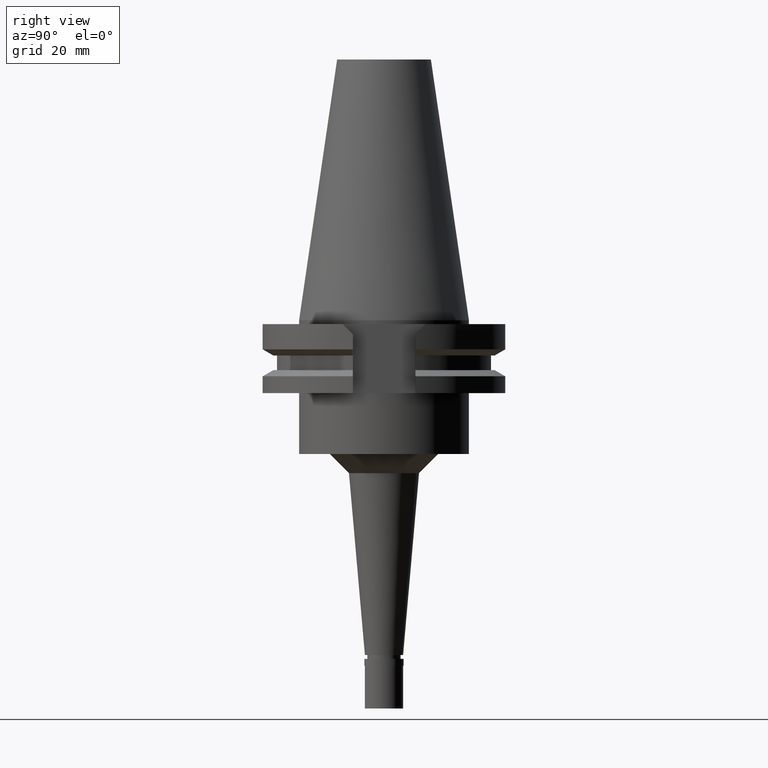
[diagram: clean part render]
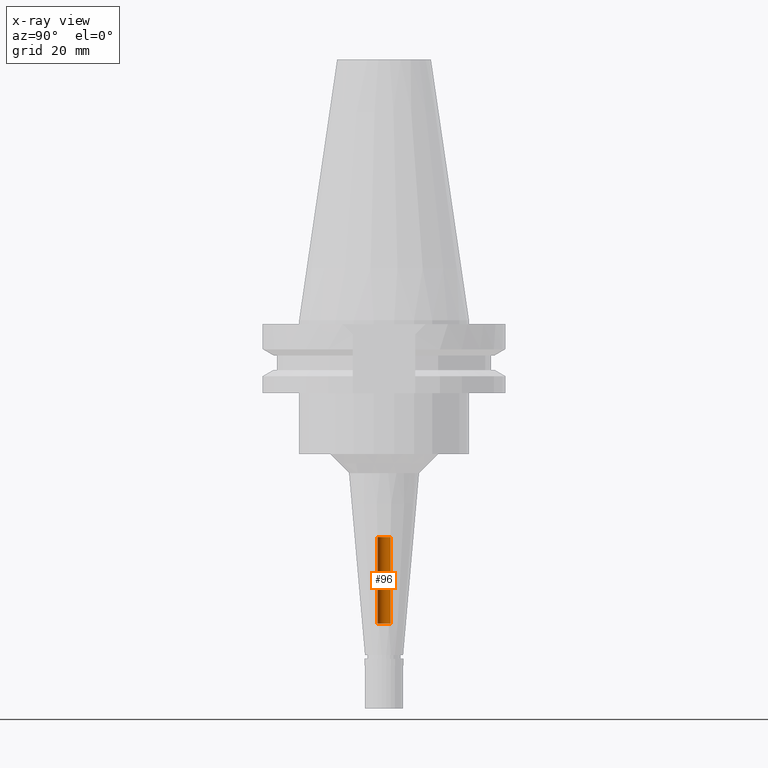
[diagram: x-ray — body ghosted, one internal face saturated and labeled with its STEP entity id]
A machine part, right view, then the same camera in x-ray: the body is ghosted and one INTERNAL B-rep face — a face not visible from any outside direction — is saturated and labeled: STEP entity #96.
In plain terms, the highlighted cylindrical surface (edge-blend (fillet) strip) has radius 1.7 mm, axis along (0, 0, -1).
Its self-contained STEP definition (entity closure, byte-faithful):
#96 = ADVANCED_FACE ( 'NONE', ( #3026 ), #1734, .F. ) ;
#142 = ORIENTED_EDGE ( 'NONE', *, *, #729, .F. ) ;
#340 = CARTESIAN_POINT ( 'NONE',  ( 0.0000000000000000000, 1.699999999999999956, -79.39999999999999147 ) ) ;
#505 = CARTESIAN_POINT ( 'NONE',  ( 0.0000000000000000000, 2.162205772404999825E-14, -79.39999999999999147 ) ) ;
#617 = DIRECTION ( 'NONE',  ( 0.0000000000000000000, 0.0000000000000000000, 1.000000000000000000 ) ) ;
#687 = DIRECTION ( 'NONE',  ( 0.0000000000000000000, 0.0000000000000000000, 1.000000000000000000 ) ) ;
#729 = EDGE_CURVE ( 'NONE', #1365, #2290, #2110, .T. ) ;
#780 = DIRECTION ( 'NONE',  ( 0.0000000000000000000, -1.000000000000000000, 0.0000000000000000000 ) ) ;
#857 = CARTESIAN_POINT ( 'NONE',  ( 0.0000000000000000000, -1.699999999999999956, -79.39999999999999147 ) ) ;
#865 = VERTEX_POINT ( 'NONE', #2618 ) ;
#963 = EDGE_LOOP ( 'NONE', ( #2663, #142, #2409, #1023 ) ) ;
#1005 = EDGE_CURVE ( 'NONE', #865, #2290, #2394, .T. ) ;
#1023 = ORIENTED_EDGE ( 'NONE', *, *, #1988, .T. ) ;
#1043 = VECTOR ( 'NONE', #3045, 1000.000000000000000 ) ;
#1119 = CARTESIAN_POINT ( 'NONE',  ( 0.0000000000000000000, -1.699999999999999956, -79.39999999999999147 ) ) ;
#1159 = EDGE_CURVE ( 'NONE', #1365, #2309, #1956, .T. ) ;
#1232 = DIRECTION ( 'NONE',  ( 0.0000000000000000000, -1.000000000000000000, 0.0000000000000000000 ) ) ;
#1257 = CARTESIAN_POINT ( 'NONE',  ( 0.0000000000000000000, 2.162205772404999825E-14, 76.55750000000000455 ) ) ;
#1278 = AXIS2_PLACEMENT_3D ( 'NONE', #1257, #1801, #780 ) ;
#1365 = VERTEX_POINT ( 'NONE', #1119 ) ;
#1375 = CARTESIAN_POINT ( 'NONE',  ( 0.0000000000000000000, -1.699999999999999956, -56.75000000000000000 ) ) ;
#1513 = CARTESIAN_POINT ( 'NONE',  ( 0.0000000000000000000, 1.699999999999999956, -79.39999999999999147 ) ) ;
#1575 = LINE ( 'NONE', #1513, #1043 ) ;
#1697 = AXIS2_PLACEMENT_3D ( 'NONE', #2421, #687, #1944 ) ;
#1734 = CYLINDRICAL_SURFACE ( 'NONE', #1278, 1.699999999999999956 ) ;
#1801 = DIRECTION ( 'NONE',  ( 0.0000000000000000000, 0.0000000000000000000, -1.000000000000000000 ) ) ;
#1893 = AXIS2_PLACEMENT_3D ( 'NONE', #505, #2352, #1232 ) ;
#1944 = DIRECTION ( 'NONE',  ( 0.0000000000000000000, 1.000000000000000000, 0.0000000000000000000 ) ) ;
#1956 = CIRCLE ( 'NONE', #1893, 1.699999999999999956 ) ;
#1988 = EDGE_CURVE ( 'NONE', #2309, #865, #1575, .T. ) ;
#2110 = LINE ( 'NONE', #857, #3014 ) ;
#2290 = VERTEX_POINT ( 'NONE', #1375 ) ;
#2309 = VERTEX_POINT ( 'NONE', #340 ) ;
#2352 = DIRECTION ( 'NONE',  ( 0.0000000000000000000, 0.0000000000000000000, -1.000000000000000000 ) ) ;
#2394 = CIRCLE ( 'NONE', #1697, 1.699999999999999956 ) ;
#2409 = ORIENTED_EDGE ( 'NONE', *, *, #1159, .T. ) ;
#2421 = CARTESIAN_POINT ( 'NONE',  ( 0.0000000000000000000, 2.162205772404999825E-14, -56.75000000000000000 ) ) ;
#2618 = CARTESIAN_POINT ( 'NONE',  ( 0.0000000000000000000, 1.699999999999999956, -56.75000000000000000 ) ) ;
#2663 = ORIENTED_EDGE ( 'NONE', *, *, #1005, .T. ) ;
#3014 = VECTOR ( 'NONE', #617, 1000.000000000000000 ) ;
#3026 = FACE_OUTER_BOUND ( 'NONE', #963, .T. ) ;
#3045 = DIRECTION ( 'NONE',  ( 0.0000000000000000000, 0.0000000000000000000, 1.000000000000000000 ) ) ;